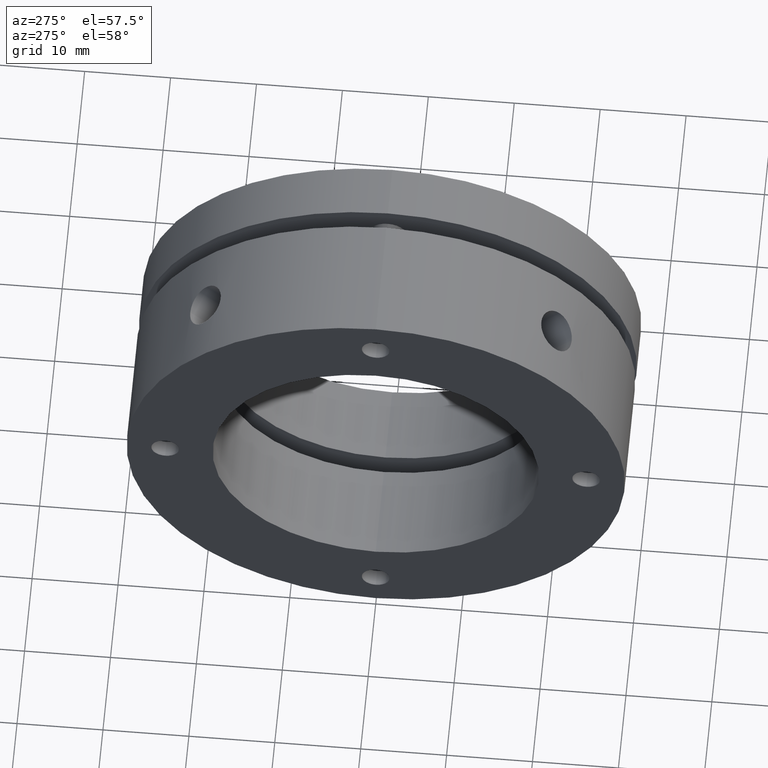
[diagram: clean part render]
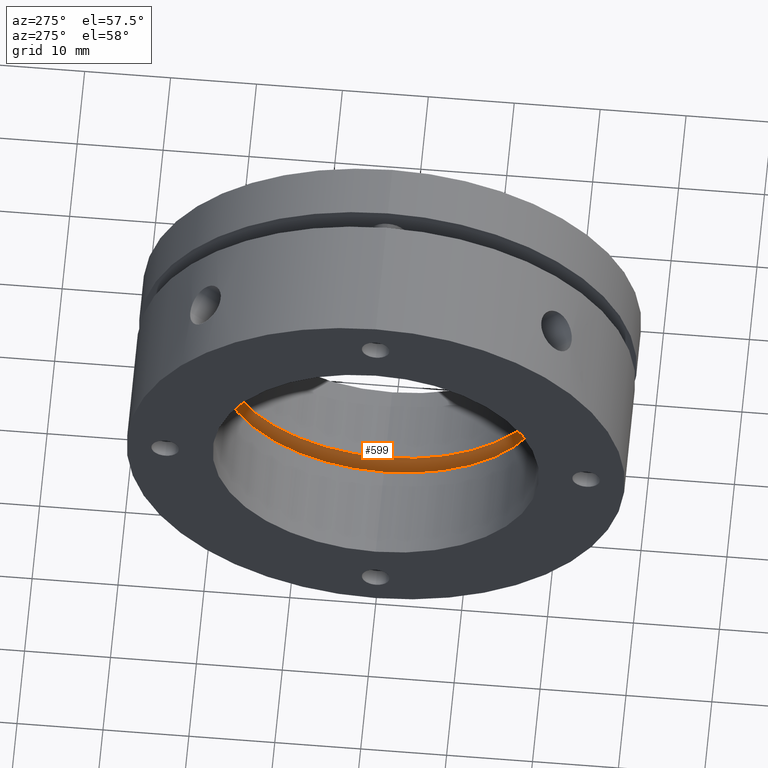
[diagram: same view with one face highlighted and labeled with its STEP entity id]
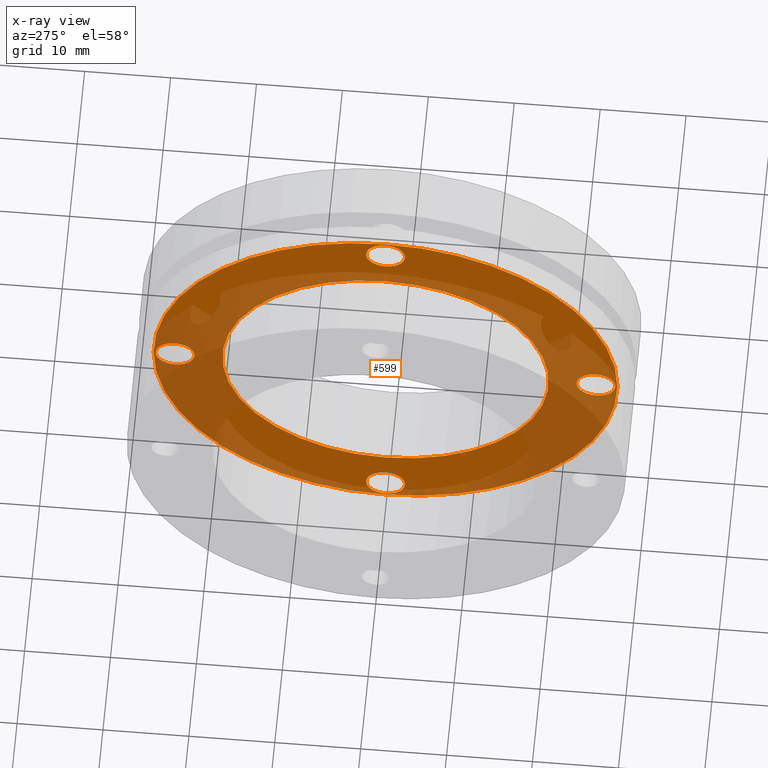
[diagram: x-ray of the same camera — body ghosted, the highlighted face saturated]
A machine part, auxiliary view. The second image highlights one B-rep face of the part: STEP entity #599.
The next image is the same camera in x-ray: the body ghosted, the highlighted face saturated — about 52% of this face is hidden behind the body in this view.
In plain terms, the highlighted planar face has unit normal (1, 0, 0).
Its self-contained STEP definition (entity closure, byte-faithful):
#195 = VERTEX_POINT ( 'NONE', #1667 ) ;
#196 = VERTEX_POINT ( 'NONE', #1676 ) ;
#199 = VERTEX_POINT ( 'NONE', #1669 ) ;
#200 = VERTEX_POINT ( 'NONE', #1678 ) ;
#203 = VERTEX_POINT ( 'NONE', #1680 ) ;
#204 = VERTEX_POINT ( 'NONE', #1681 ) ;
#207 = VERTEX_POINT ( 'NONE', #1684 ) ;
#212 = VERTEX_POINT ( 'NONE', #1689 ) ;
#232 = ORIENTED_EDGE ( 'NONE', *, *, #3517, .F. ) ;
#341 = ORIENTED_EDGE ( 'NONE', *, *, #1616, .T. ) ;
#343 = ORIENTED_EDGE ( 'NONE', *, *, #1601, .T. ) ;
#364 = ORIENTED_EDGE ( 'NONE', *, *, #3453, .T. ) ;
#411 = ORIENTED_EDGE ( 'NONE', *, *, #1604, .T. ) ;
#422 = ORIENTED_EDGE ( 'NONE', *, *, #1608, .F. ) ;
#428 = ORIENTED_EDGE ( 'NONE', *, *, #3488, .T. ) ;
#442 = ORIENTED_EDGE ( 'NONE', *, *, #1613, .T. ) ;
#443 = ORIENTED_EDGE ( 'NONE', *, *, #3451, .T. ) ;
#444 = ORIENTED_EDGE ( 'NONE', *, *, #3452, .F. ) ;
#445 = ORIENTED_EDGE ( 'NONE', *, *, #1612, .F. ) ;
#447 = ORIENTED_EDGE ( 'NONE', *, *, #3444, .T. ) ;
#457 = VERTEX_POINT ( 'NONE', #1712 ) ;
#458 = VERTEX_POINT ( 'NONE', #1713 ) ;
#471 = AXIS2_PLACEMENT_3D ( 'NONE', #2400, #2401, #2402 ) ;
#474 = AXIS2_PLACEMENT_3D ( 'NONE', #2409, #2410, #2411 ) ;
#478 = AXIS2_PLACEMENT_3D ( 'NONE', #2421, #2422, #2423 ) ;
#482 = AXIS2_PLACEMENT_3D ( 'NONE', #2433, #2434, #2435 ) ;
#483 = AXIS2_PLACEMENT_3D ( 'NONE', #2436, #2437, #2438 ) ;
#486 = AXIS2_PLACEMENT_3D ( 'NONE', #2450, #2451, #2452 ) ;
#501 = AXIS2_PLACEMENT_3D ( 'NONE', #2859, #2860, #2861 ) ;
#503 = AXIS2_PLACEMENT_3D ( 'NONE', #2873, #2874, #2875 ) ;
#504 = AXIS2_PLACEMENT_3D ( 'NONE', #2877, #2878, #2879 ) ;
#505 = AXIS2_PLACEMENT_3D ( 'NONE', #2881, #2882, #2883 ) ;
#518 = AXIS2_PLACEMENT_3D ( 'NONE', #2963, #2964, #2965 ) ;
#534 = AXIS2_PLACEMENT_3D ( 'NONE', #3037, #3038, #3039 ) ;
#599 = ADVANCED_FACE ( 'NONE', ( #1332, #1340, #1336, #1334, #1338, #1341 ), #1761, .F. ) ;
#966 = CIRCLE ( 'NONE', #471, 2.249999999999998700 ) ;
#969 = CIRCLE ( 'NONE', #474, 2.250000000000000400 ) ;
#973 = CIRCLE ( 'NONE', #478, 19.00000000000000000 ) ;
#977 = CIRCLE ( 'NONE', #482, 27.00000000000000700 ) ;
#979 = CIRCLE ( 'NONE', #483, 2.250000000000000400 ) ;
#982 = CIRCLE ( 'NONE', #486, 2.249999999999998700 ) ;
#1028 = CIRCLE ( 'NONE', #501, 2.249999999999998700 ) ;
#1033 = CIRCLE ( 'NONE', #503, 2.250000000000000400 ) ;
#1040 = CIRCLE ( 'NONE', #505, 2.250000000000000400 ) ;
#1042 = CIRCLE ( 'NONE', #504, 27.00000000000000700 ) ;
#1099 = CIRCLE ( 'NONE', #518, 2.249999999999998700 ) ;
#1139 = CIRCLE ( 'NONE', #534, 19.00000000000000000 ) ;
#1332 = FACE_BOUND ( 'NONE', #3375, .T. ) ;
#1334 = FACE_BOUND ( 'NONE', #3383, .T. ) ;
#1336 = FACE_BOUND ( 'NONE', #3366, .T. ) ;
#1338 = FACE_BOUND ( 'NONE', #3376, .T. ) ;
#1340 = FACE_BOUND ( 'NONE', #3382, .T. ) ;
#1341 = FACE_OUTER_BOUND ( 'NONE', #3384, .T. ) ;
#1601 = EDGE_CURVE ( 'NONE', #199, #200, #966, .T. ) ;
#1604 = EDGE_CURVE ( 'NONE', #203, #204, #969, .T. ) ;
#1608 = EDGE_CURVE ( 'NONE', #457, #458, #973, .T. ) ;
#1612 = EDGE_CURVE ( 'NONE', #1662, #1660, #977, .T. ) ;
#1613 = EDGE_CURVE ( 'NONE', #195, #196, #979, .T. ) ;
#1616 = EDGE_CURVE ( 'NONE', #207, #212, #982, .T. ) ;
#1632 = AXIS2_PLACEMENT_3D ( 'NONE', #1763, #1759, #1765 ) ;
#1660 = VERTEX_POINT ( 'NONE', #2458 ) ;
#1662 = VERTEX_POINT ( 'NONE', #2460 ) ;
#1667 = CARTESIAN_POINT ( 'NONE',  ( 12.99999999999999300, 24.50000000000001100, -2.250000000000004400 ) ) ;
#1669 = CARTESIAN_POINT ( 'NONE',  ( 12.99999999999999300, -3.000384999999999900E-015, -26.75000000000001100 ) ) ;
#1676 = CARTESIAN_POINT ( 'NONE',  ( 12.99999999999999300, 24.50000000000001100, 2.249999999999996000 ) ) ;
#1678 = CARTESIAN_POINT ( 'NONE',  ( 12.99999999999999300, -2.724839470191844700E-015, -22.25000000000001400 ) ) ;
#1680 = CARTESIAN_POINT ( 'NONE',  ( 12.99999999999999300, -24.50000000000001100, -2.249999999999999100 ) ) ;
#1681 = CARTESIAN_POINT ( 'NONE',  ( 12.99999999999999300, -24.50000000000001100, 2.250000000000001800 ) ) ;
#1684 = CARTESIAN_POINT ( 'NONE',  ( 12.99999999999999300, 0.0000000000000000000, 22.25000000000001400 ) ) ;
#1689 = CARTESIAN_POINT ( 'NONE',  ( 12.99999999999999300, 2.755455298081546700E-016, 26.75000000000001100 ) ) ;
#1712 = CARTESIAN_POINT ( 'NONE',  ( 13.00000000000001100, 2.326828918379971000E-015, 19.00000000000000000 ) ) ;
#1713 = CARTESIAN_POINT ( 'NONE',  ( 13.00000000000001100, 0.0000000000000000000, -19.00000000000000000 ) ) ;
#1759 = DIRECTION ( 'NONE',  ( 1.000000000000000000, -0.0000000000000000000, 0.0000000000000000000 ) ) ;
#1761 = PLANE ( 'NONE',  #1632 ) ;
#1763 = CARTESIAN_POINT ( 'NONE',  ( 13.00000000000001100, 13.50000000000000500, 0.0000000000000000000 ) ) ;
#1765 = DIRECTION ( 'NONE',  ( 0.0000000000000000000, 0.0000000000000000000, -1.000000000000000000 ) ) ;
#2400 = CARTESIAN_POINT ( 'NONE',  ( 12.99999999999999300, -3.000384999999999900E-015, -24.50000000000001100 ) ) ;
#2401 = DIRECTION ( 'NONE',  ( 1.000000000000000000, 0.0000000000000000000, 0.0000000000000000000 ) ) ;
#2402 = DIRECTION ( 'NONE',  ( 0.0000000000000000000, 0.0000000000000000000, -1.000000000000000000 ) ) ;
#2409 = CARTESIAN_POINT ( 'NONE',  ( 12.99999999999999300, -24.50000000000001100, 1.500192000000000300E-015 ) ) ;
#2410 = DIRECTION ( 'NONE',  ( 1.000000000000000000, 0.0000000000000000000, 0.0000000000000000000 ) ) ;
#2411 = DIRECTION ( 'NONE',  ( 0.0000000000000000000, 0.0000000000000000000, -1.000000000000000000 ) ) ;
#2421 = CARTESIAN_POINT ( 'NONE',  ( 13.00000000000001100, 0.0000000000000000000, 0.0000000000000000000 ) ) ;
#2422 = DIRECTION ( 'NONE',  ( -1.000000000000000000, -0.0000000000000000000, -0.0000000000000000000 ) ) ;
#2423 = DIRECTION ( 'NONE',  ( 0.0000000000000000000, 0.0000000000000000000, -1.000000000000000000 ) ) ;
#2433 = CARTESIAN_POINT ( 'NONE',  ( 13.00000000000000900, 0.0000000000000000000, 0.0000000000000000000 ) ) ;
#2434 = DIRECTION ( 'NONE',  ( 1.000000000000000000, -0.0000000000000000000, -0.0000000000000000000 ) ) ;
#2435 = DIRECTION ( 'NONE',  ( 0.0000000000000000000, 0.0000000000000000000, 1.000000000000000000 ) ) ;
#2436 = CARTESIAN_POINT ( 'NONE',  ( 12.99999999999999300, 24.50000000000001100, -4.500577000000000000E-015 ) ) ;
#2437 = DIRECTION ( 'NONE',  ( 1.000000000000000000, 0.0000000000000000000, 0.0000000000000000000 ) ) ;
#2438 = DIRECTION ( 'NONE',  ( 0.0000000000000000000, 0.0000000000000000000, -1.000000000000000000 ) ) ;
#2450 = CARTESIAN_POINT ( 'NONE',  ( 12.99999999999999300, 0.0000000000000000000, 24.50000000000001100 ) ) ;
#2451 = DIRECTION ( 'NONE',  ( 1.000000000000000000, 0.0000000000000000000, 0.0000000000000000000 ) ) ;
#2452 = DIRECTION ( 'NONE',  ( 0.0000000000000000000, 0.0000000000000000000, -1.000000000000000000 ) ) ;
#2458 = CARTESIAN_POINT ( 'NONE',  ( 13.00000000000000900, 0.0000000000000000000, 27.00000000000000700 ) ) ;
#2460 = CARTESIAN_POINT ( 'NONE',  ( 13.00000000000000900, 3.306546357697854500E-015, -27.00000000000000700 ) ) ;
#2859 = CARTESIAN_POINT ( 'NONE',  ( 12.99999999999999300, 0.0000000000000000000, 24.50000000000001100 ) ) ;
#2860 = DIRECTION ( 'NONE',  ( 1.000000000000000000, 0.0000000000000000000, 0.0000000000000000000 ) ) ;
#2861 = DIRECTION ( 'NONE',  ( 0.0000000000000000000, 0.0000000000000000000, -1.000000000000000000 ) ) ;
#2873 = CARTESIAN_POINT ( 'NONE',  ( 12.99999999999999300, 24.50000000000001100, -4.500577000000000000E-015 ) ) ;
#2874 = DIRECTION ( 'NONE',  ( 1.000000000000000000, 0.0000000000000000000, 0.0000000000000000000 ) ) ;
#2875 = DIRECTION ( 'NONE',  ( 0.0000000000000000000, 0.0000000000000000000, -1.000000000000000000 ) ) ;
#2877 = CARTESIAN_POINT ( 'NONE',  ( 13.00000000000000900, 0.0000000000000000000, 0.0000000000000000000 ) ) ;
#2878 = DIRECTION ( 'NONE',  ( 1.000000000000000000, -0.0000000000000000000, -0.0000000000000000000 ) ) ;
#2879 = DIRECTION ( 'NONE',  ( 0.0000000000000000000, 0.0000000000000000000, 1.000000000000000000 ) ) ;
#2881 = CARTESIAN_POINT ( 'NONE',  ( 12.99999999999999300, -24.50000000000001100, 1.500192000000000300E-015 ) ) ;
#2882 = DIRECTION ( 'NONE',  ( 1.000000000000000000, 0.0000000000000000000, 0.0000000000000000000 ) ) ;
#2883 = DIRECTION ( 'NONE',  ( 0.0000000000000000000, 0.0000000000000000000, -1.000000000000000000 ) ) ;
#2963 = CARTESIAN_POINT ( 'NONE',  ( 12.99999999999999300, -3.000384999999999900E-015, -24.50000000000001100 ) ) ;
#2964 = DIRECTION ( 'NONE',  ( 1.000000000000000000, 0.0000000000000000000, 0.0000000000000000000 ) ) ;
#2965 = DIRECTION ( 'NONE',  ( 0.0000000000000000000, 0.0000000000000000000, -1.000000000000000000 ) ) ;
#3037 = CARTESIAN_POINT ( 'NONE',  ( 13.00000000000001100, 0.0000000000000000000, 0.0000000000000000000 ) ) ;
#3038 = DIRECTION ( 'NONE',  ( -1.000000000000000000, -0.0000000000000000000, -0.0000000000000000000 ) ) ;
#3039 = DIRECTION ( 'NONE',  ( 0.0000000000000000000, 0.0000000000000000000, -1.000000000000000000 ) ) ;
#3366 = EDGE_LOOP ( 'NONE', ( #411, #364 ) ) ;
#3375 = EDGE_LOOP ( 'NONE', ( #232, #422 ) ) ;
#3376 = EDGE_LOOP ( 'NONE', ( #442, #443 ) ) ;
#3382 = EDGE_LOOP ( 'NONE', ( #341, #447 ) ) ;
#3383 = EDGE_LOOP ( 'NONE', ( #343, #428 ) ) ;
#3384 = EDGE_LOOP ( 'NONE', ( #444, #445 ) ) ;
#3444 = EDGE_CURVE ( 'NONE', #212, #207, #1028, .T. ) ;
#3451 = EDGE_CURVE ( 'NONE', #196, #195, #1033, .T. ) ;
#3452 = EDGE_CURVE ( 'NONE', #1660, #1662, #1042, .T. ) ;
#3453 = EDGE_CURVE ( 'NONE', #204, #203, #1040, .T. ) ;
#3488 = EDGE_CURVE ( 'NONE', #200, #199, #1099, .T. ) ;
#3517 = EDGE_CURVE ( 'NONE', #458, #457, #1139, .T. ) ;